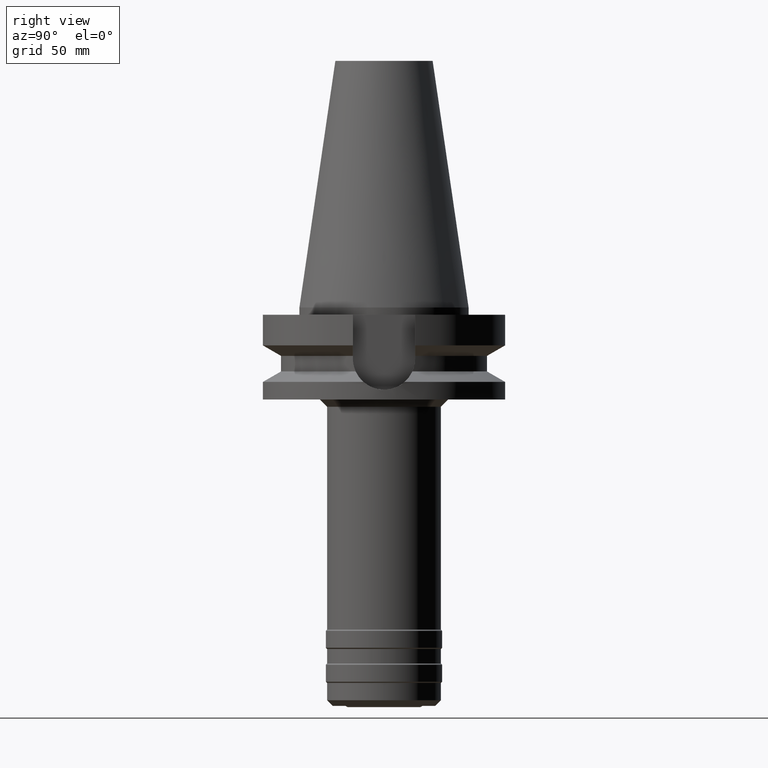
[diagram: clean part render]
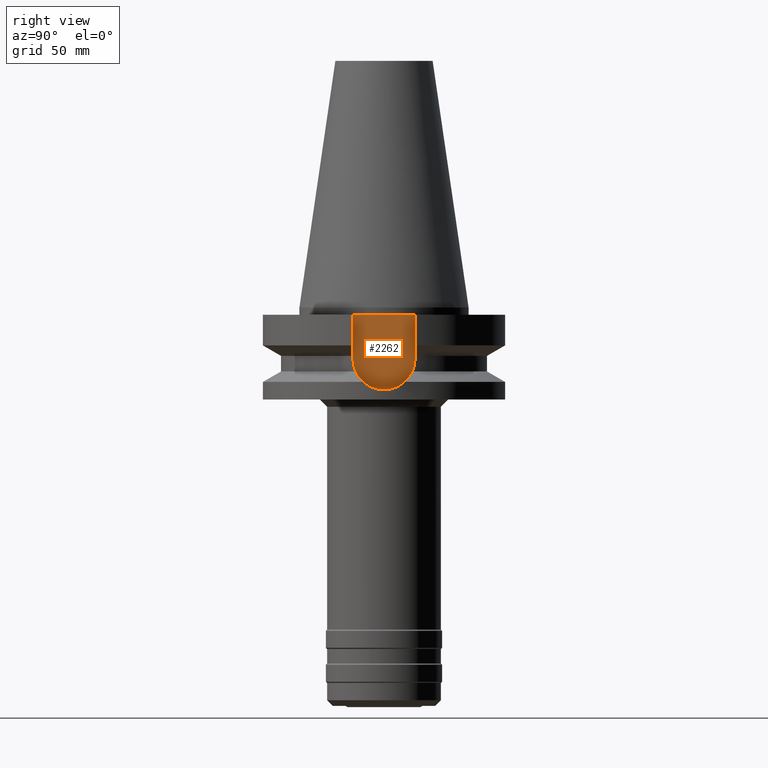
[diagram: same view with one face highlighted and labeled with its STEP entity id]
A machine part, right view. The second image highlights one B-rep face of the part: STEP entity #2262.
In plain terms, the highlighted planar face has unit normal (1, 0, 0).
Its self-contained STEP definition (entity closure, byte-faithful):
#903=DIRECTION('',(0.E0,0.E0,-1.E0));
#904=VECTOR('',#903,1.815E1);
#905=CARTESIAN_POINT('',(3.54E1,1.285E1,-3.E0));
#906=LINE('',#905,#904);
#910=CARTESIAN_POINT('',(3.54E1,0.E0,-2.115E1));
#911=DIRECTION('',(-1.E0,0.E0,0.E0));
#912=DIRECTION('',(0.E0,1.E0,0.E0));
#913=AXIS2_PLACEMENT_3D('',#910,#911,#912);
#918=CARTESIAN_POINT('',(3.54E1,0.E0,-2.115E1));
#919=DIRECTION('',(-1.E0,0.E0,0.E0));
#920=DIRECTION('',(0.E0,0.E0,-1.E0));
#921=AXIS2_PLACEMENT_3D('',#918,#919,#920);
#926=DIRECTION('',(0.E0,0.E0,1.E0));
#927=VECTOR('',#926,1.815E1);
#928=CARTESIAN_POINT('',(3.54E1,-1.285E1,-2.115E1));
#929=LINE('',#928,#927);
#963=DIRECTION('',(0.E0,-1.E0,0.E0));
#964=VECTOR('',#963,2.57E1);
#965=CARTESIAN_POINT('',(3.54E1,1.285E1,-3.E0));
#966=LINE('',#965,#964);
#1391=CARTESIAN_POINT('',(3.54E1,-1.285E1,-2.115E1));
#1392=VERTEX_POINT('',#1391);
#1393=CARTESIAN_POINT('',(3.54E1,0.E0,-3.4E1));
#1394=VERTEX_POINT('',#1393);
#1395=CARTESIAN_POINT('',(3.54E1,1.285E1,-2.115E1));
#1396=VERTEX_POINT('',#1395);
#1443=CARTESIAN_POINT('',(3.54E1,1.285E1,-3.E0));
#1444=VERTEX_POINT('',#1443);
#1445=CARTESIAN_POINT('',(3.54E1,-1.285E1,-3.E0));
#1446=VERTEX_POINT('',#1445);
#2248=CARTESIAN_POINT('',(3.54E1,0.E0,0.E0));
#2249=DIRECTION('',(1.E0,0.E0,0.E0));
#2250=DIRECTION('',(0.E0,0.E0,-1.E0));
#2251=AXIS2_PLACEMENT_3D('',#2248,#2249,#2250);
#2252=PLANE('',#2251);
#2254=ORIENTED_EDGE('',*,*,#2253,.F.);
#2255=ORIENTED_EDGE('',*,*,#2237,.T.);
#2256=ORIENTED_EDGE('',*,*,#2125,.T.);
#2257=ORIENTED_EDGE('',*,*,#2123,.T.);
#2259=ORIENTED_EDGE('',*,*,#2258,.T.);
#2260=EDGE_LOOP('',(#2254,#2255,#2256,#2257,#2259));
#2261=FACE_OUTER_BOUND('',#2260,.F.);
#914=CIRCLE('',#913,1.285E1);
#922=CIRCLE('',#921,1.285E1);
#2123=EDGE_CURVE('',#1394,#1392,#922,.T.);
#2125=EDGE_CURVE('',#1396,#1394,#914,.T.);
#2237=EDGE_CURVE('',#1444,#1396,#906,.T.);
#2253=EDGE_CURVE('',#1444,#1446,#966,.T.);
#2258=EDGE_CURVE('',#1392,#1446,#929,.T.);
#2262=ADVANCED_FACE('',(#2261),#2252,.T.);